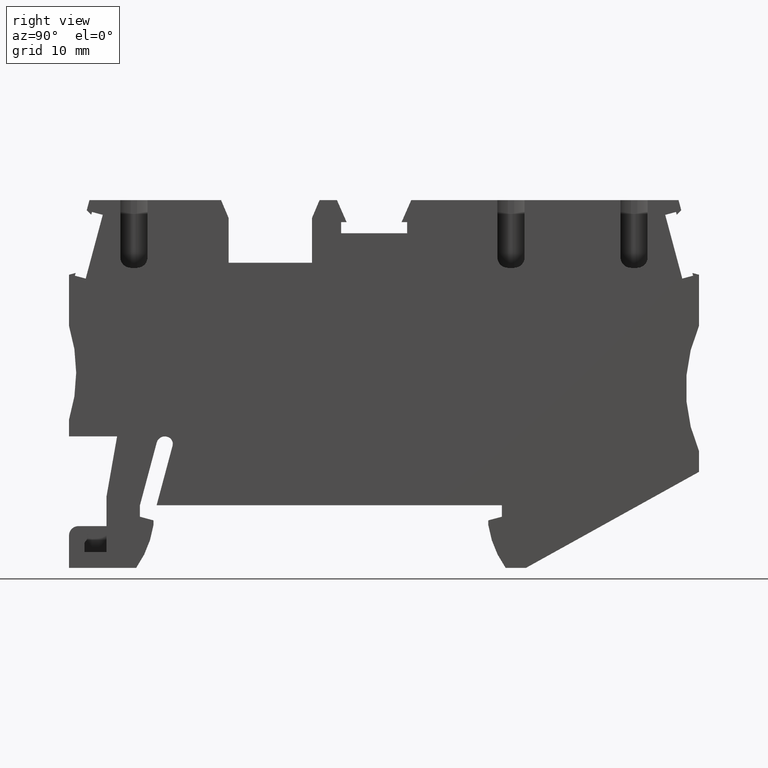
[diagram: clean part render]
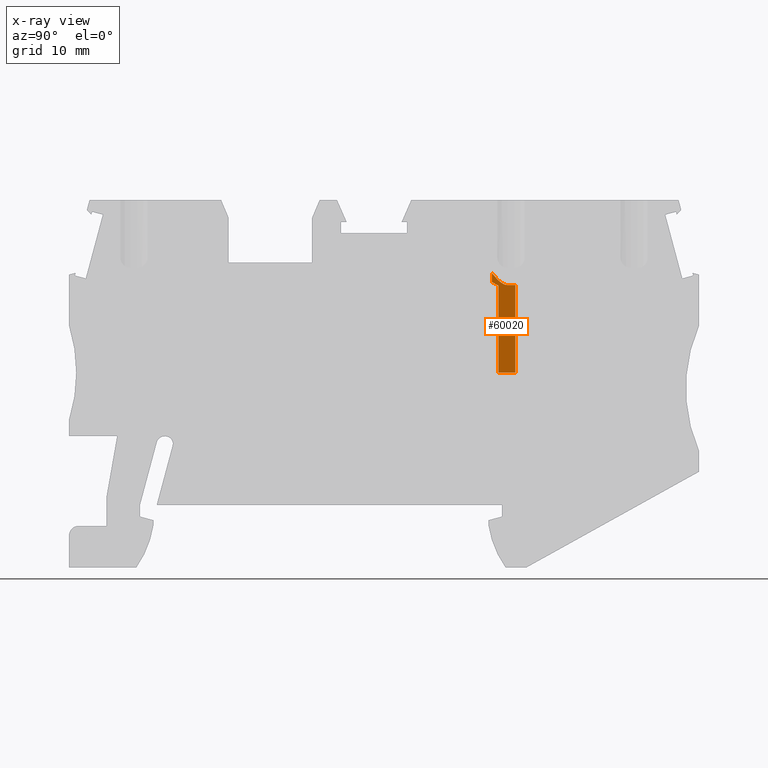
[diagram: x-ray — body ghosted, one internal face saturated and labeled with its STEP entity id]
A machine part, right view, then the same camera in x-ray: the body is ghosted and one INTERNAL B-rep face — a face not visible from any outside direction — is saturated and labeled: STEP entity #60020.
In plain terms, the highlighted planar face has unit normal (1, -0, 0).
Its self-contained STEP definition (entity closure, byte-faithful):
#31500=CARTESIAN_POINT('',(20.3071672216755,-15.6500000000031,
51.2699999999995));
#31510=DIRECTION('',(5.12790049702284E-15,1.,1.70930016567428E-15));
#31520=DIRECTION('',(1.,-5.55111512312578E-17,-8.43054428632943E-13));
#31530=AXIS2_PLACEMENT_3D('',#31500,#31510,#31520);
#31540=CONICAL_SURFACE('',#31530,2.4,0.523598775598299);
#57250=CARTESIAN_POINT('',(18.7821672216801,-17.3500001326348,
52.7200000000008));
#57260=VERTEX_POINT('',#57250);
#57290=CARTESIAN_POINT('',(-13.6271539166551,1.36153015083295,
52.7200000000281));
#57300=DIRECTION('',(-0.866025403784474,0.499999999999939,
7.30836729776545E-13));
#57310=VECTOR('',#57300,1.);
#57320=LINE('',#57290,#57310);
#57330=CARTESIAN_POINT('',(18.1571672216809,-16.9891562143919,
52.7200000000013));
#57340=VERTEX_POINT('',#57330);
#57350=EDGE_CURVE('',#57260,#57340,#57320,.T.);
#57610=CARTESIAN_POINT('',(19.7071672216754,-15.6500000000031,51.27));
#57620=DIRECTION('',(1.70930016567428E-15,1.,1.70930016567428E-15));
#57630=DIRECTION('',(1.,-5.55111512312578E-17,-8.43054428632943E-13));
#57640=AXIS2_PLACEMENT_3D('',#57610,#57620,#57630);
#57650=CONICAL_SURFACE('',#57640,2.4,0.523598775598298);
#58110=CARTESIAN_POINT('',(18.1571672216777,-16.1306466493949,
52.7200000000013));
#58120=VERTEX_POINT('',#58110);
#58150=CARTESIAN_POINT('',(20.3979109260331,-18.3000000000034,
52.7199999999994));
#58160=DIRECTION('',(8.43054428632943E-13,-1.46035561482387E-15,1.));
#58170=DIRECTION('',(-1.,5.55111512312578E-17,8.43054428632943E-13));
#58180=AXIS2_PLACEMENT_3D('',#58150,#58160,#58170);
#58190=PLANE('',#58180);
#58200=CARTESIAN_POINT('',(18.1571672217336,-16.13064664931,
52.7200000000013));
#58210=CARTESIAN_POINT('',(18.1829405613859,-16.1632465010518,
52.7200000000013));
#58220=CARTESIAN_POINT('',(18.2088959164385,-16.1956977975595,
52.7200000000013));
#58230=CARTESIAN_POINT('',(18.235055075357,-16.2279776086173,
52.7200000000012));
#58240=CARTESIAN_POINT('',(18.261214230807,-16.2602574153951,
52.7200000000012));
#58250=CARTESIAN_POINT('',(18.2875771940441,-16.2923658891407,
52.7200000000012));
#58260=CARTESIAN_POINT('',(18.3141703794923,-16.3242763048881,
52.7200000000012));
#58270=CARTESIAN_POINT('',(18.34076354846,-16.3561867008597,
52.7200000000012));
#58280=CARTESIAN_POINT('',(18.3675869612468,-16.3878992559898,
52.7200000000011));
#58290=CARTESIAN_POINT('',(18.3946725205037,-16.4193819720836,
52.7200000000011));
#58300=CARTESIAN_POINT('',(18.4217580422296,-16.4508646445536,
52.7200000000011));
#58310=CARTESIAN_POINT('',(18.4491057623632,-16.482117787451,
52.7199999999898));
#58320=CARTESIAN_POINT('',(18.4767540901811,-16.513102055096,
52.7199999999898));
#58330=CARTESIAN_POINT('',(18.5044058010407,-16.5440901139672,
52.7199999999898));
#58340=CARTESIAN_POINT('',(18.5323344097158,-16.5747845117922,
52.720000000001));
#58350=CARTESIAN_POINT('',(18.5606884439096,-16.6052441337023,
52.720000000001));
#58360=CARTESIAN_POINT('',(18.5890360033767,-16.6356968000685,
52.720000000001));
#58370=CARTESIAN_POINT('',(18.6177728910592,-16.6658744870393,
52.7200000000009));
#58380=CARTESIAN_POINT('',(18.6469217330565,-16.6956743606815,
52.7200000000009));
#58390=CARTESIAN_POINT('',(18.6760706630616,-16.7254743242971,
52.7200000000009));
#58400=CARTESIAN_POINT('',(18.70563163772,-16.7548970780435,
52.7200000000009));
#58410=CARTESIAN_POINT('',(18.7356427235484,-16.7838308791048,
52.7200000000008));
#58420=CARTESIAN_POINT('',(18.7656538707904,-16.8127647393752,
52.7200000000008));
#58430=CARTESIAN_POINT('',(18.7961155268621,-16.8412107497008,
52.7200000000008));
#58440=CARTESIAN_POINT('',(18.8270851006097,-16.8690428359137,
52.7200000000008));
#58450=CARTESIAN_POINT('',(18.8580546039194,-16.8968748588246,
52.7200000000007));
#58460=CARTESIAN_POINT('',(18.8895330147553,-16.9240948132689,
52.7200000000007));
#58470=CARTESIAN_POINT('',(18.9215998672859,-16.9505521783415,
52.7200000000007));
#58480=CARTESIAN_POINT('',(18.937633371101,-16.9637809248618,
52.7200000000007));
#58490=CARTESIAN_POINT('',(18.9538145556582,-16.9768187427662,
52.7200000000006));
#58500=CARTESIAN_POINT('',(18.9701556522674,-16.9896434357251,
52.7200000000006));
#58510=CARTESIAN_POINT('',(18.986496720461,-17.0024681063831,
52.7200000000006));
#58520=CARTESIAN_POINT('',(19.0029977902763,-17.0150797626268,
52.7200000000006));
#58530=CARTESIAN_POINT('',(19.019672415158,-17.0274530452016,
52.7200000000006));
#58540=CARTESIAN_POINT('',(19.0363469940966,-17.0398262936846,
52.7200000000006));
#58550=CARTESIAN_POINT('',(19.0531952510755,-17.0519612999725,
52.7200000000001));
#58560=CARTESIAN_POINT('',(19.0702318179927,-17.0638287707046,
52.7200000000001));
#58570=CARTESIAN_POINT('',(19.0872617683453,-17.0756916324162,
52.7200000000001));
#58580=CARTESIAN_POINT('',(19.1045031229854,-17.0873036513917,
52.7199999999916));
#58590=CARTESIAN_POINT('',(19.1219848597909,-17.0986355445669,
52.7199999999916));
#58600=CARTESIAN_POINT('',(19.1569418995007,-17.1212951603774,
52.7199999999916));
#58610=CARTESIAN_POINT('',(19.1928070435677,-17.1427988057365,
52.7200000000004));
#58620=CARTESIAN_POINT('',(19.2295170552405,-17.1626925524135,
52.7200000000004));
#58630=CARTESIAN_POINT('',(19.2662272546946,-17.1825864008523,
52.7200000000004));
#58640=CARTESIAN_POINT('',(19.3037834647807,-17.2008698106283,
52.7200000000003));
#58650=CARTESIAN_POINT('',(19.3421264381939,-17.2170832712208,
52.7200000000003));
#58660=CARTESIAN_POINT('',(19.3612979096095,-17.2251899950511,
52.7200000000003));
#58670=CARTESIAN_POINT('',(19.3806659712834,-17.2327791682054,
52.7199999999996));
#58680=CARTESIAN_POINT('',(19.4002228168971,-17.2397942430858,
52.7199999999996));
#58690=CARTESIAN_POINT('',(19.4197846500759,-17.2468111070146,
52.7199999999996));
#58700=CARTESIAN_POINT('',(19.4394998570513,-17.253244236591,
52.7200000000002));
#58710=CARTESIAN_POINT('',(19.4595141209461,-17.2590804645081,
52.7200000000002));
#58720=CARTESIAN_POINT('',(19.479519395497,-17.2649140711019,
52.7200000000002));
#58730=CARTESIAN_POINT('',(19.4997733053553,-17.2701319185713,
52.7199999999996));
#58740=CARTESIAN_POINT('',(19.520215130796,-17.2746594610857,
52.7199999999996));
#58750=CARTESIAN_POINT('',(19.5406567568397,-17.2791869594367,
52.7199999999996));
#58760=CARTESIAN_POINT('',(19.5612844173962,-17.2830232980691,
52.7199999999998));
#58770=CARTESIAN_POINT('',(19.58202547179,-17.2861122720716,
52.7199999999998));
#58780=CARTESIAN_POINT('',(19.602766500928,-17.2892012423128,
52.7199999999998));
#58790=CARTESIAN_POINT('',(19.6236183452795,-17.291542196259,
52.7200000000001));
#58800=CARTESIAN_POINT('',(19.644502449818,-17.2931040010664,52.72));
#58810=CARTESIAN_POINT('',(19.6653867363361,-17.294665819483,52.72));
#58820=CARTESIAN_POINT('',(19.6863002742691,-17.2954482671935,52.72));
#58830=CARTESIAN_POINT('',(19.707167221678,-17.2954482671935,52.72));
#58840=B_SPLINE_CURVE_WITH_KNOTS('',3,(#58200,#58210,#58220,#58230,
#58240,#58250,#58260,#58270,#58280,#58290,#58300,#58310,#58320,#58330,
#58340,#58350,#58360,#58370,#58380,#58390,#58400,#58410,#58420,#58430,
#58440,#58450,#58460,#58470,#58480,#58490,#58500,#58510,#58520,#58530,
#58540,#58550,#58560,#58570,#58580,#58590,#58600,#58610,#58620,#58630,
#58640,#58650,#58660,#58670,#58680,#58690,#58700,#58710,#58720,#58730,
#58740,#58750,#58760,#58770,#58780,#58790,#58800,#58810,#58820,#58830),
.UNSPECIFIED.,.F.,.F.,(4,3,3,3,3,3,3,3,3,3,3,3,3,3,3,3,3,3,3,3,3,4),(0.,
0.124659623733601,0.249290734639962,0.373894111837275,0.498478468382178,
0.623120804543591,0.748079208271679,0.8731556105477,0.998153145686589,
1.12296953650619,1.1853071970585,1.24761058841861,1.30989812126619,
1.37226997891555,1.49746790769789,1.62257338986921,1.68495913839964,
1.74731785637661,1.80999746825104,1.87287277945511,1.93575379575695,
1.99847696241227),.UNSPECIFIED.);
#58850=SURFACE_CURVE('',#58840,(#57650,#58190),.CURVE_3D.);
#58860=CARTESIAN_POINT('',(19.707167221678,-17.2954482671935,52.72));
#58870=VERTEX_POINT('',#58860);
#58880=EDGE_CURVE('',#58120,#58870,#58850,.T.);
#59280=CARTESIAN_POINT('',(20.3071672216478,-17.2954482671935,
52.7199999999995));
#59290=VERTEX_POINT('',#59280);
#59340=CARTESIAN_POINT('',(-31.6959912507728,-17.2954482671935,
52.7200000000433));
#59350=DIRECTION('',(-1.,5.55111512312578E-17,8.43054428632943E-13));
#59360=VECTOR('',#59350,1.);
#59370=LINE('',#59340,#59360);
#59380=EDGE_CURVE('',#59290,#58870,#59370,.T.);
#59500=CARTESIAN_POINT('',(-13.6271539166582,-25.7000000000034,
52.7200000000281));
#59510=DIRECTION('',(-1.,0.,8.43054428632943E-13));
#59520=VECTOR('',#59510,1.);
#59530=LINE('',#59500,#59520);
#59540=CARTESIAN_POINT('',(20.4321672216789,-25.7000000000034,
52.7199999999994));
#59550=VERTEX_POINT('',#59540);
#59560=CARTESIAN_POINT('',(18.7821672216801,-25.7000000000034,
52.7200000000008));
#59570=VERTEX_POINT('',#59560);
#59580=EDGE_CURVE('',#59550,#59570,#59530,.T.);
#59590=ORIENTED_EDGE('',*,*,#59580,.T.);
#59600=CARTESIAN_POINT('',(20.4321672216812,-44.9483361673609,
52.7199999999994));
#59610=DIRECTION('',(1.17184040249185E-13,-1.,-1.46035561492267E-15));
#59620=VECTOR('',#59610,1.);
#59630=LINE('',#59600,#59620);
#59640=CARTESIAN_POINT('',(20.4321672216779,-17.28613337111,
52.7199999999994));
#59650=VERTEX_POINT('',#59640);
#59660=EDGE_CURVE('',#59650,#59550,#59630,.T.);
#59670=ORIENTED_EDGE('',*,*,#59660,.T.);
#59680=CARTESIAN_POINT('',(20.3071672216478,-17.2954482671935,
52.7199999999995));
#59690=CARTESIAN_POINT('',(20.3176632570333,-17.2954482671939,
52.7199999999995));
#59700=CARTESIAN_POINT('',(20.3281531601171,-17.2952507164858,
52.7199999999995));
#59710=CARTESIAN_POINT('',(20.3386262657771,-17.2948572466513,
52.7199999999995));
#59720=CARTESIAN_POINT('',(20.349099393094,-17.2944637760031,
52.7199999999995));
#59730=CARTESIAN_POINT('',(20.3595556208701,-17.293874399751,
52.7199999999995));
#59740=CARTESIAN_POINT('',(20.3699849714137,-17.2930925467725,
52.7199999999995));
#59750=CARTESIAN_POINT('',(20.3804143533028,-17.2923106914441,
52.7199999999994));
#59760=CARTESIAN_POINT('',(20.3908167642976,-17.2913363810013,
52.7199999999994));
#59770=CARTESIAN_POINT('',(20.4011832518576,-17.2901746243141,
52.7199999999994));
#59780=CARTESIAN_POINT('',(20.4115497810078,-17.2890128629659,
52.7199999999994));
#59790=CARTESIAN_POINT('',(20.4218803053723,-17.2876636833576,
52.7199999999882));
#59800=CARTESIAN_POINT('',(20.4321672216892,-17.2861333711094,
52.7199999999882));
#59810=B_SPLINE_CURVE_WITH_KNOTS('',3,(#59680,#59690,#59700,#59710,
#59720,#59730,#59740,#59750,#59760,#59770,#59780,#59790,#59800),
.UNSPECIFIED.,.F.,.F.,(4,3,3,3,4),(0.,0.0314664441960807,
0.0628765828717069,0.0942127862635526,0.125460890485539),.UNSPECIFIED.);
#59820=SURFACE_CURVE('',#59810,(#31540,#58190),.CURVE_3D.);
#59830=EDGE_CURVE('',#59290,#59650,#59820,.T.);
#59840=ORIENTED_EDGE('',*,*,#59830,.T.);
#59850=ORIENTED_EDGE('',*,*,#59380,.F.);
#59860=ORIENTED_EDGE('',*,*,#58880,.T.);
#59870=CARTESIAN_POINT('',(18.1571672216777,-9.15000000000982,
52.7200000000013));
#59880=DIRECTION('',(-5.55111512312578E-17,-1.,-1.46035561482382E-15));
#59890=VECTOR('',#59880,1.);
#59900=LINE('',#59870,#59890);
#59910=EDGE_CURVE('',#58120,#57340,#59900,.T.);
#59920=ORIENTED_EDGE('',*,*,#59910,.F.);
#59930=ORIENTED_EDGE('',*,*,#57350,.T.);
#59940=CARTESIAN_POINT('',(18.78216722168,-9.15000000000988,
52.7200000000008));
#59950=DIRECTION('',(-3.03923552991137E-15,1.,1.46035561482645E-15));
#59960=VECTOR('',#59950,1.);
#59970=LINE('',#59940,#59960);
#59980=EDGE_CURVE('',#59570,#57260,#59970,.T.);
#59990=ORIENTED_EDGE('',*,*,#59980,.T.);
#60000=EDGE_LOOP('',(#59990,#59930,#59920,#59860,#59850,#59840,#59670,
#59590));
#60010=FACE_OUTER_BOUND('',#60000,.T.);
#60020=ADVANCED_FACE('',(#60010),#58190,.F.);